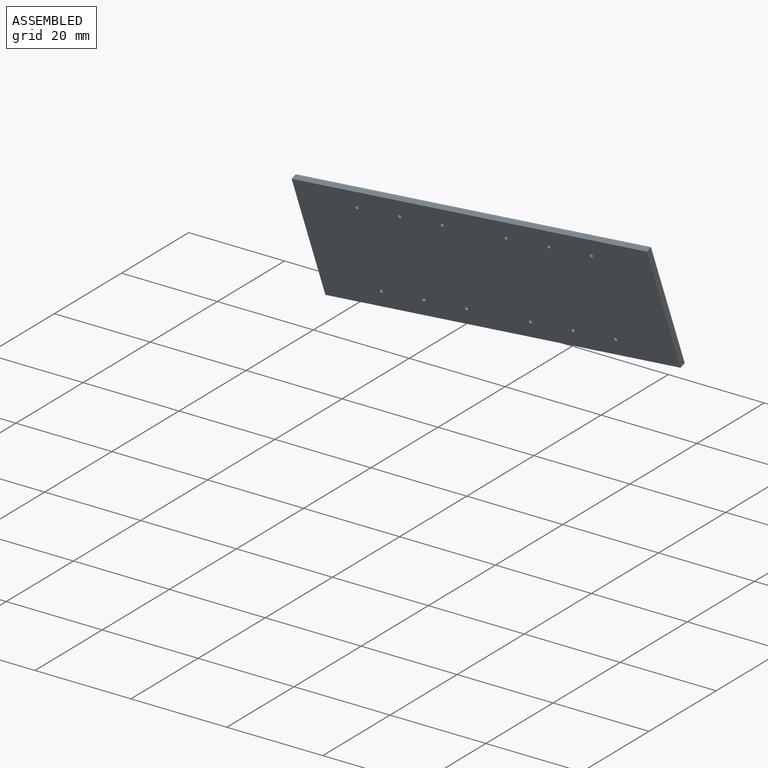
[diagram: assembled view]
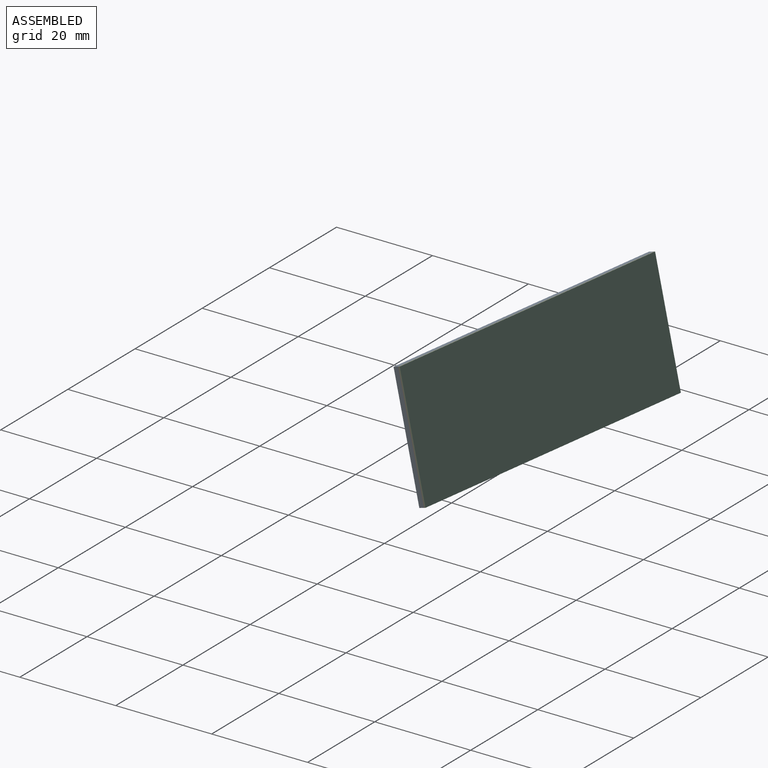
[diagram: assembled view, second angle]
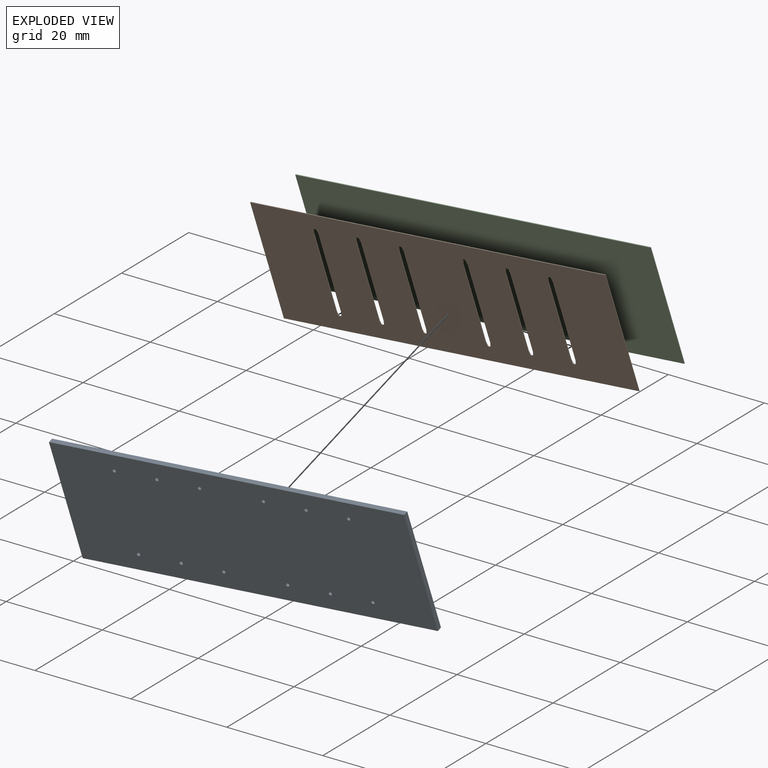
[diagram: exploded view]
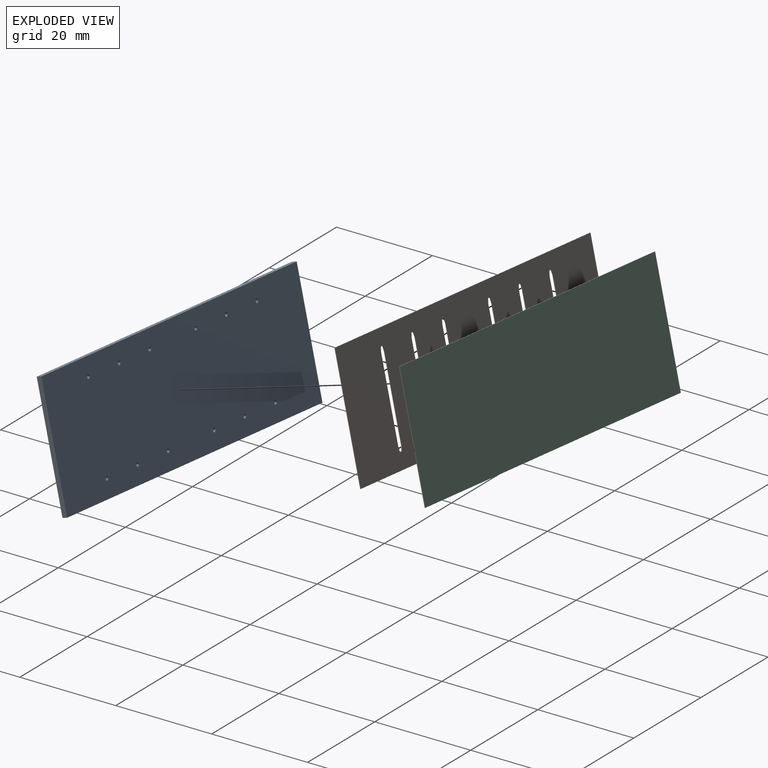
[diagram: exploded view, second angle]
ASSEMBLY  parts=3 mates=2
PART A: 18 faces, bbox 75x1x25 mm
  f0: plane 75x1mm, normal (0,0,-1), area 75mm2, adj f1,f14,f16,f17
  f1: plane 25x1mm, normal (1,0,0), area 25mm2, adj f0,f2,f16,f17
  f2: plane 75x1mm, normal (0,0,1), area 75mm2, adj f1,f14,f16,f17
  f3: cylinder r=0.38mm len=1mm, axis (0,1,0), area 2.4mm2, adj f16,f17
  f4: cylinder r=0.38mm len=1mm, axis (0,1,0), area 2.4mm2, adj f16,f17
  f5: cylinder r=0.38mm len=1mm, axis (0,1,0), area 2.4mm2, adj f16,f17
  f6: cylinder r=0.38mm len=1mm, axis (0,1,0), area 2.4mm2, adj f16,f17
  f7: cylinder r=0.38mm len=1mm, axis (0,1,0), area 2.4mm2, adj f16,f17
  f8: cylinder r=0.38mm len=1mm, axis (0,1,0), area 2.4mm2, adj f16,f17
  f9: cylinder r=0.38mm len=1mm, axis (0,1,0), area 2.4mm2, adj f16,f17
  f10: cylinder r=0.38mm len=1mm, axis (0,1,0), area 2.4mm2, adj f16,f17
  f11: cylinder r=0.38mm len=1mm, axis (0,1,0), area 2.4mm2, adj f16,f17
  f12: cylinder r=0.38mm len=1mm, axis (0,1,0), area 2.4mm2, adj f16,f17
  f13: cylinder r=0.38mm len=1mm, axis (0,1,0), area 2.4mm2, adj f16,f17
  f14: plane 25x1mm, normal (-1,0,0), area 25mm2, adj f0,f2,f16,f17
  f15: cylinder r=0.38mm len=1mm, axis (0,1,0), area 2.4mm2, adj f16,f17
  f16: plane 75x25mm, normal (0,-1,0), area 1869.7mm2, adj f0,f1,f2,f3,f4,f5,f6,f7
  f17: plane 75x25mm, normal (0,1,0), area 1869.7mm2, adj f0,f1,f2,f3,f4,f5,f6,f7
PART B: 54 faces, bbox 75x0.2x25 mm
  f0: cylinder r=0.38mm len=0.75mm, axis (0,-1,0), area 0.2mm2, adj f1,f51,f52,f53
  f1: extruded ~0.69x0.15mm, area 0.1mm2, adj f0,f2,f52,f53
  f2: plane 16.45x0.15mm, normal (-1,0,0), area 2.5mm2, adj f1,f3,f52,f53
  f3: extruded ~0.69x0.15mm, area 0.1mm2, adj f2,f4,f52,f53
  f4: cylinder r=0.38mm len=0.75mm, axis (0,-1,0), area 0.2mm2, adj f3,f5,f52,f53
  f5: extruded ~0.69x0.15mm, area 0.1mm2, adj f4,f6,f52,f53
  f6: plane 16.45x0.15mm, normal (1,0,0), area 2.5mm2, adj f5,f51,f52,f53
  f7: cylinder r=0.38mm len=0.75mm, axis (0,-1,0), area 0.2mm2, adj f8,f45,f52,f53
  f8: extruded ~0.69x0.15mm, area 0.1mm2, adj f7,f9,f52,f53
  f9: plane 16.45x0.15mm, normal (-1,0,0), area 2.5mm2, adj f8,f10,f52,f53
  f10: extruded ~0.69x0.15mm, area 0.1mm2, adj f9,f11,f52,f53
  f11: cylinder r=0.38mm len=0.75mm, axis (0,-1,0), area 0.2mm2, adj f10,f12,f52,f53
  f12: extruded ~0.69x0.15mm, area 0.1mm2, adj f11,f13,f52,f53
  f13: plane 16.45x0.15mm, normal (1,0,0), area 2.5mm2, adj f12,f45,f52,f53
  f14: plane 75x0.15mm, normal (0,0,1), area 11.2mm2, adj f15,f46,f52,f53
  f15: plane 25x0.15mm, normal (-1,0,0), area 3.8mm2, adj f14,f16,f52,f53
  f16: plane 75x0.15mm, normal (0,0,-1), area 11.2mm2, adj f15,f46,f52,f53
  f17: extruded ~0.69x0.15mm, area 0.1mm2, adj f18,f47,f52,f53
  f18: plane 16.45x0.15mm, normal (1,0,0), area 2.5mm2, adj f17,f19,f52,f53
  f19: extruded ~0.69x0.15mm, area 0.1mm2, adj f18,f20,f52,f53
  f20: cylinder r=0.38mm len=0.75mm, axis (0,-1,0), area 0.2mm2, adj f19,f21,f52,f53
  f21: extruded ~0.69x0.15mm, area 0.1mm2, adj f20,f22,f52,f53
  f22: plane 16.45x0.15mm, normal (-1,0,0), area 2.5mm2, adj f21,f23,f52,f53
  f23: extruded ~0.69x0.15mm, area 0.1mm2, adj f22,f47,f52,f53
  f24: extruded ~0.69x0.15mm, area 0.1mm2, adj f25,f48,f52,f53
  f25: plane 16.45x0.15mm, normal (1,0,0), area 2.5mm2, adj f24,f26,f52,f53
  f26: extruded ~0.69x0.15mm, area 0.1mm2, adj f25,f27,f52,f53
  f27: cylinder r=0.38mm len=0.75mm, axis (0,-1,0), area 0.2mm2, adj f26,f28,f52,f53
  f28: extruded ~0.69x0.15mm, area 0.1mm2, adj f27,f29,f52,f53
  f29: plane 16.45x0.15mm, normal (-1,0,0), area 2.5mm2, adj f28,f30,f52,f53
  f30: extruded ~0.69x0.15mm, area 0.1mm2, adj f29,f48,f52,f53
  f31: extruded ~0.69x0.15mm, area 0.1mm2, adj f32,f49,f52,f53
  f32: plane 16.45x0.15mm, normal (-1,0,0), area 2.5mm2, adj f31,f33,f52,f53
  f33: extruded ~0.69x0.15mm, area 0.1mm2, adj f32,f34,f52,f53
  f34: cylinder r=0.38mm len=0.75mm, axis (0,-1,0), area 0.2mm2, adj f33,f35,f52,f53
  f35: extruded ~0.69x0.15mm, area 0.1mm2, adj f34,f36,f52,f53
  f36: plane 16.45x0.15mm, normal (1,0,0), area 2.5mm2, adj f35,f37,f52,f53
  f37: extruded ~0.69x0.15mm, area 0.1mm2, adj f36,f49,f52,f53
  f38: extruded ~0.69x0.15mm, area 0.1mm2, adj f39,f50,f52,f53
  f39: plane 16.45x0.15mm, normal (-1,0,0), area 2.5mm2, adj f38,f40,f52,f53
  f40: extruded ~0.69x0.15mm, area 0.1mm2, adj f39,f41,f52,f53
  f41: cylinder r=0.38mm len=0.75mm, axis (0,-1,0), area 0.2mm2, adj f40,f42,f52,f53
  f42: extruded ~0.69x0.15mm, area 0.1mm2, adj f41,f43,f52,f53
  f43: plane 16.45x0.15mm, normal (1,0,0), area 2.5mm2, adj f42,f44,f52,f53
  f44: extruded ~0.69x0.15mm, area 0.1mm2, adj f43,f50,f52,f53
  f45: extruded ~0.69x0.15mm, area 0.1mm2, adj f7,f13,f52,f53
  f46: plane 25x0.15mm, normal (1,0,0), area 3.8mm2, adj f14,f16,f52,f53
  f47: cylinder r=0.38mm len=0.75mm, axis (0,-1,0), area 0.2mm2, adj f17,f23,f52,f53
  f48: cylinder r=0.38mm len=0.75mm, axis (0,-1,0), area 0.2mm2, adj f24,f30,f52,f53
  f49: cylinder r=0.38mm len=0.75mm, axis (0,-1,0), area 0.2mm2, adj f31,f37,f52,f53
  f50: cylinder r=0.38mm len=0.75mm, axis (0,-1,0), area 0.2mm2, adj f38,f44,f52,f53
  f51: extruded ~0.69x0.15mm, area 0.1mm2, adj f0,f6,f52,f53
  f52: plane 75x25mm, normal (0,1,0), area 1765.3mm2, adj f0,f1,f2,f3,f4,f5,f6,f7
  f53: plane 75x25mm, normal (0,-1,0), area 1765.3mm2, adj f0,f1,f2,f3,f4,f5,f6,f7
PART C: 6 faces, bbox 75x0.2x25 mm
  f0: plane 75x0.18mm, normal (0,0,1), area 13.5mm2, adj f1,f3,f4,f5
  f1: plane 25x0.18mm, normal (-1,0,0), area 4.5mm2, adj f0,f2,f4,f5
  f2: plane 75x0.18mm, normal (0,0,-1), area 13.5mm2, adj f1,f3,f4,f5
  f3: plane 25x0.18mm, normal (1,0,0), area 4.5mm2, adj f0,f2,f4,f5
  f4: plane 75x25mm, normal (0,1,0), area 1875mm2, adj f0,f1,f2,f3
  f5: plane 75x25mm, normal (0,-1,0), area 1875mm2, adj f0,f1,f2,f3
PLACE A rot(axis=(-1,0,-0.04),163.9deg) t=(-2.57,-10.57,-3.25)mm
PLACE B rot(axis=(-1,0,-0.04),163.9deg) t=(-2.58,-9.47,-2.94)mm
PLACE C rot(axis=(-1,0,-0.04),163.9deg) t=(-2.59,-9.15,-2.84)mm
MATE slider A.f16 <-> B.f52  axis (-0.01,0.96,0.28) through (-2.58,-9.61,-2.98)mm
MATE slider B.f53 <-> C.f4  axis (-0.01,0.96,0.28) through (-2.58,-9.47,-2.94)mm
